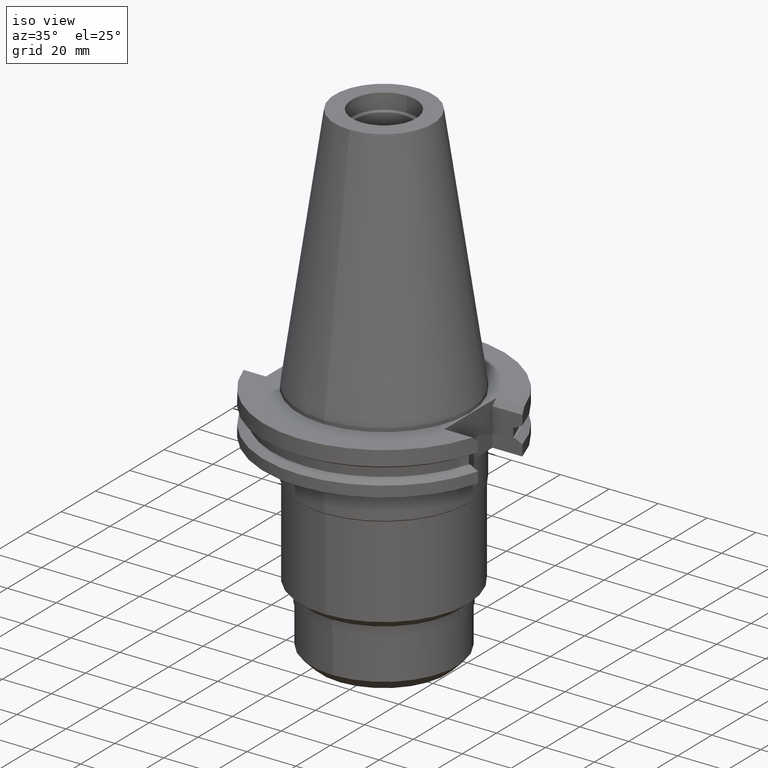
[diagram: clean part render]
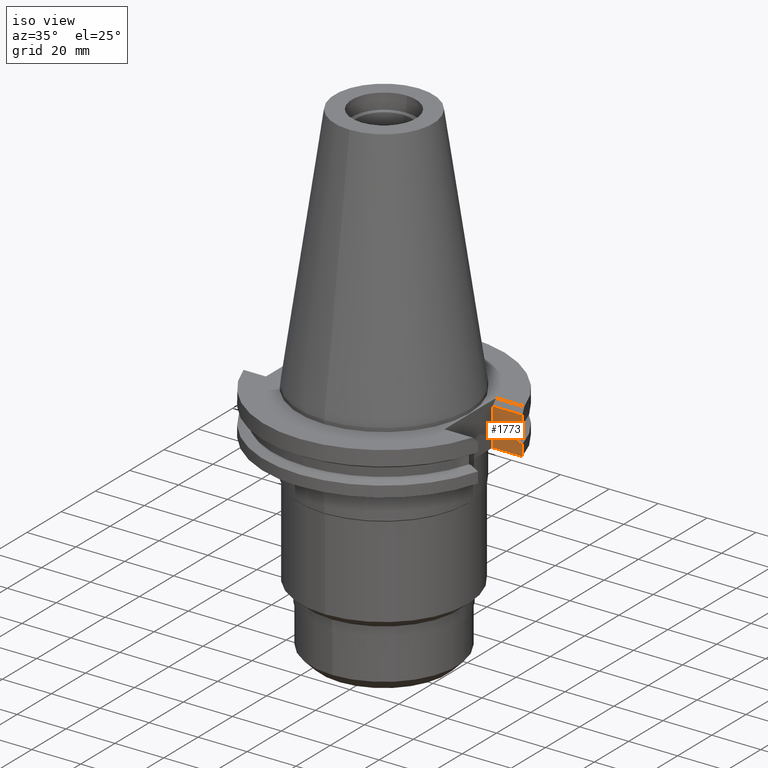
[diagram: same view with one face highlighted and labeled with its STEP entity id]
A machine part, iso view. The second image highlights one B-rep face of the part: STEP entity #1773.
In plain terms, the highlighted planar face has unit normal (0, 1, 0).
Its self-contained STEP definition (entity closure, byte-faithful):
#198=DIRECTION('',(0.E0,0.E0,-1.E0));
#199=VECTOR('',#198,1.535E1);
#200=CARTESIAN_POINT('',(3.527E1,1.2955E1,-3.7E0));
#201=LINE('',#200,#199);
#205=DIRECTION('',(1.E0,1.455229645531E-14,0.E0));
#206=VECTOR('',#205,1.220671146204E1);
#207=CARTESIAN_POINT('',(3.527E1,1.2955E1,-1.905E1));
#208=LINE('',#207,#206);
#267=DIRECTION('',(1.E0,-3.840794754624E-13,3.927592376197E-13));
#268=VECTOR('',#267,8.186200530381E-1);
#269=CARTESIAN_POINT('',(4.376795631509E1,1.2955E1,-1.30475E1));
#270=LINE('',#269,#268);
#274=DIRECTION('',(-1.E0,-1.455229645531E-14,0.E0));
#275=VECTOR('',#274,1.220671146204E1);
#276=CARTESIAN_POINT('',(4.747671146204E1,1.2955E1,-3.7E0));
#277=LINE('',#276,#275);
#288=DIRECTION('',(-2.622645846769E-13,-3.642563676068E-14,1.E0));
#289=VECTOR('',#288,3.901333230925E0);
#290=CARTESIAN_POINT('',(4.747671146204E1,1.2955E1,-7.601333230925E0));
#291=LINE('',#290,#289);
#383=DIRECTION('',(1.341459893288E-13,4.848650216703E-14,1.E0));
#384=VECTOR('',#383,4.396333230921E0);
#385=CARTESIAN_POINT('',(4.747671146204E1,1.2955E1,-1.905E1));
#386=LINE('',#385,#384);
#397=CARTESIAN_POINT('',(4.747671146204E1,1.2955E1,-1.465366676908E1));
#398=CARTESIAN_POINT('',(4.715593427836E1,1.2955E1,-1.447499824729E1));
#399=CARTESIAN_POINT('',(4.651414584904E1,1.2955E1,-1.411780078678E1));
#400=CARTESIAN_POINT('',(4.555077636708E1,1.2955E1,-1.358239409642E1));
#401=CARTESIAN_POINT('',(4.490806163991E1,1.2955E1,-1.322573823301E1));
#402=CARTESIAN_POINT('',(4.458657636813E1,1.2955E1,-1.30475E1));
#472=DIRECTION('',(0.E0,0.E0,1.E0));
#473=VECTOR('',#472,3.84E0);
#474=CARTESIAN_POINT('',(4.376795631509E1,1.2955E1,-1.30475E1));
#475=LINE('',#474,#473);
#486=DIRECTION('',(1.E0,-2.864321511922E-13,-1.032891696723E-12));
#487=VECTOR('',#486,8.186200530384E-1);
#488=CARTESIAN_POINT('',(4.376795631509E1,1.2955E1,-9.2075E0));
#489=LINE('',#488,#487);
#525=CARTESIAN_POINT('',(4.458657636813E1,1.2955E1,-9.207500000001E0));
#526=CARTESIAN_POINT('',(4.490806163993E1,1.2955E1,-9.029261766981E0));
#527=CARTESIAN_POINT('',(4.555077636711E1,1.2955E1,-8.672605903566E0));
#528=CARTESIAN_POINT('',(4.651414584907E1,1.2955E1,-8.137199213206E0));
#529=CARTESIAN_POINT('',(4.715593427837E1,1.2955E1,-7.780001752702E0));
#530=CARTESIAN_POINT('',(4.747671146204E1,1.2955E1,-7.601333230925E0));
#1456=CARTESIAN_POINT('',(3.527E1,1.2955E1,-1.905E1));
#1458=VERTEX_POINT('',#1456);
#1460=CARTESIAN_POINT('',(4.747671146204E1,1.2955E1,-1.905E1));
#1461=VERTEX_POINT('',#1460);
#1482=CARTESIAN_POINT('',(3.527E1,1.2955E1,-3.7E0));
#1483=VERTEX_POINT('',#1482);
#1500=CARTESIAN_POINT('',(4.747671146204E1,1.2955E1,-1.465366676908E1));
#1501=VERTEX_POINT('',#1500);
#1541=VERTEX_POINT('',#402);
#1546=CARTESIAN_POINT('',(4.376795631509E1,1.2955E1,-1.30475E1));
#1547=VERTEX_POINT('',#1546);
#1552=CARTESIAN_POINT('',(4.376795631509E1,1.2955E1,-9.2075E0));
#1553=VERTEX_POINT('',#1552);
#1558=CARTESIAN_POINT('',(4.458657636813E1,1.2955E1,-9.207500000001E0));
#1559=VERTEX_POINT('',#1558);
#1564=VERTEX_POINT('',#530);
#1571=CARTESIAN_POINT('',(4.747671146204E1,1.2955E1,-3.7E0));
#1572=VERTEX_POINT('',#1571);
#1748=CARTESIAN_POINT('',(3.527E1,1.2955E1,-1.905E1));
#1749=DIRECTION('',(0.E0,1.E0,0.E0));
#1750=DIRECTION('',(0.E0,0.E0,1.E0));
#1751=AXIS2_PLACEMENT_3D('',#1748,#1749,#1750);
#1752=PLANE('',#1751);
#1753=ORIENTED_EDGE('',*,*,#1721,.F.);
#1754=ORIENTED_EDGE('',*,*,#1710,.F.);
#1756=ORIENTED_EDGE('',*,*,#1755,.F.);
#1758=ORIENTED_EDGE('',*,*,#1757,.F.);
#1760=ORIENTED_EDGE('',*,*,#1759,.F.);
#1762=ORIENTED_EDGE('',*,*,#1761,.F.);
#1764=ORIENTED_EDGE('',*,*,#1763,.F.);
#1766=ORIENTED_EDGE('',*,*,#1765,.T.);
#1768=ORIENTED_EDGE('',*,*,#1767,.F.);
#1770=ORIENTED_EDGE('',*,*,#1769,.F.);
#1771=EDGE_LOOP('',(#1753,#1754,#1756,#1758,#1760,#1762,#1764,#1766,#1768,
#1770));
#1772=FACE_OUTER_BOUND('',#1771,.F.);
#403=B_SPLINE_CURVE_WITH_KNOTS('',3,(#397,#398,#399,#400,#401,#402),
.UNSPECIFIED.,.F.,.F.,(4,1,1,4),(0.E0,3.333333333333E-1,6.666666666667E-1,1.E0),
.UNSPECIFIED.);
#531=B_SPLINE_CURVE_WITH_KNOTS('',3,(#525,#526,#527,#528,#529,#530),
.UNSPECIFIED.,.F.,.F.,(4,1,1,4),(0.E0,3.333333333333E-1,6.666666666667E-1,1.E0),
.UNSPECIFIED.);
#1710=EDGE_CURVE('',#1483,#1458,#201,.T.);
#1721=EDGE_CURVE('',#1458,#1461,#208,.T.);
#1755=EDGE_CURVE('',#1572,#1483,#277,.T.);
#1757=EDGE_CURVE('',#1564,#1572,#291,.T.);
#1759=EDGE_CURVE('',#1559,#1564,#531,.T.);
#1761=EDGE_CURVE('',#1553,#1559,#489,.T.);
#1763=EDGE_CURVE('',#1547,#1553,#475,.T.);
#1765=EDGE_CURVE('',#1547,#1541,#270,.T.);
#1767=EDGE_CURVE('',#1501,#1541,#403,.T.);
#1769=EDGE_CURVE('',#1461,#1501,#386,.T.);
#1773=ADVANCED_FACE('',(#1772),#1752,.F.);